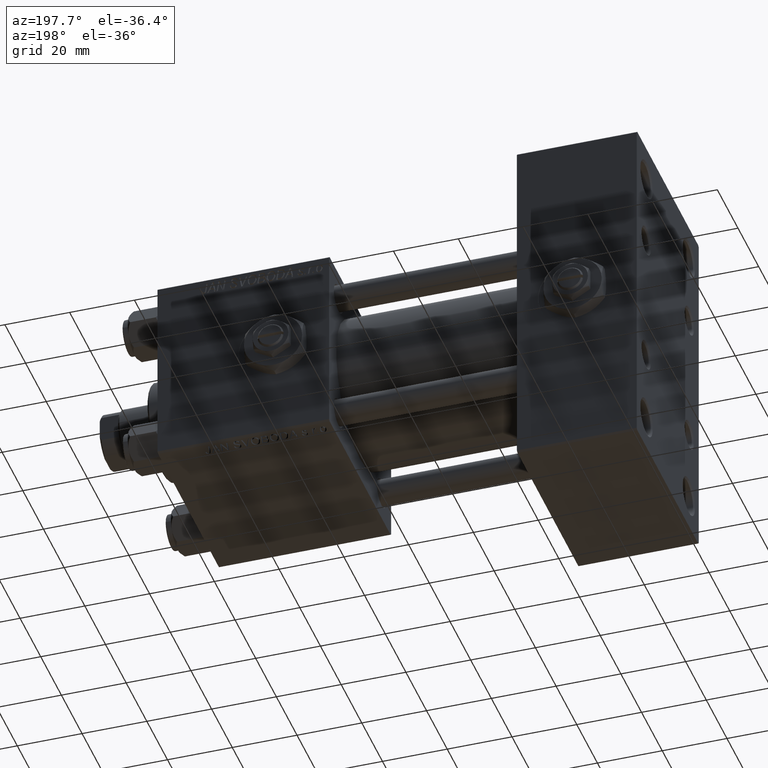
[diagram: clean part render]
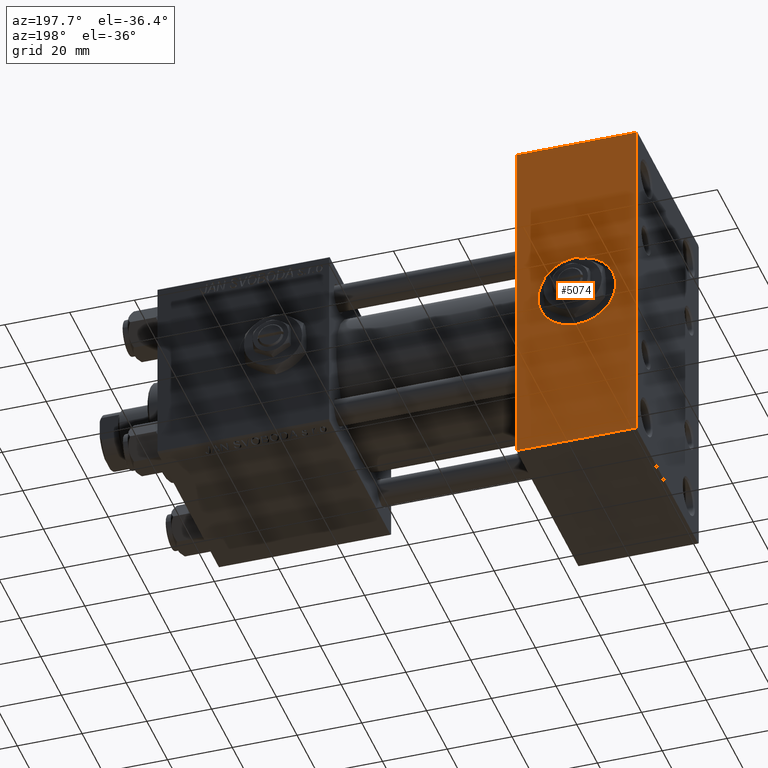
[diagram: same view with one face highlighted and labeled with its STEP entity id]
A machine part, auxiliary view. The second image highlights one B-rep face of the part: STEP entity #5074.
In plain terms, the highlighted planar face has unit normal (0, 1, 0).
Its self-contained STEP definition (entity closure, byte-faithful):
#498 = CARTESIAN_POINT ( 'NONE',  ( 18.50000000000000000, 30.00000000000000355, -12.00000000000000178 ) ) ;
#585 = VECTOR ( 'NONE', #11307, 1000.000000000000000 ) ;
#670 = VECTOR ( 'NONE', #23444, 1000.000000000000000 ) ;
#3161 = LINE ( 'NONE', #10805, #670 ) ;
#4066 = PLANE ( 'NONE',  #40587 ) ;
#4565 = CARTESIAN_POINT ( 'NONE',  ( 0.000000000000000000, 30.00000000000000355, -53.99999999999995737 ) ) ;
#4591 = DIRECTION ( 'NONE',  ( -0.000000000000000000, 1.000000000000000000, 0.000000000000000000 ) ) ;
#5074 = ADVANCED_FACE ( 'NONE', ( #31975, #24356 ), #4066, .T. ) ;
#10488 = VERTEX_POINT ( 'NONE', #32064 ) ;
#10805 = CARTESIAN_POINT ( 'NONE',  ( 0.000000000000000000, 30.00000000000000355, 54.50000000000001421 ) ) ;
#11173 = EDGE_CURVE ( 'NONE', #16066, #10488, #43153, .T. ) ;
#11307 = DIRECTION ( 'NONE',  ( 0.000000000000000000, 0.000000000000000000, -1.000000000000000000 ) ) ;
#11676 = VERTEX_POINT ( 'NONE', #4565 ) ;
#12959 = ORIENTED_EDGE ( 'NONE', *, *, #39206, .F. ) ;
#13815 = VECTOR ( 'NONE', #47857, 1000.000000000000000 ) ;
#15243 = CARTESIAN_POINT ( 'NONE',  ( 18.50000000000000000, 30.00000000000000355, 0.000000000000000000 ) ) ;
#16066 = VERTEX_POINT ( 'NONE', #28572 ) ;
#18246 = AXIS2_PLACEMENT_3D ( 'NONE', #15243, #19195, #27358 ) ;
#19195 = DIRECTION ( 'NONE',  ( 0.000000000000000000, 1.000000000000000000, 0.000000000000000000 ) ) ;
#19709 = CARTESIAN_POINT ( 'NONE',  ( 37.00000000000000000, 30.00000000000000355, 54.50000000000001421 ) ) ;
#19923 = EDGE_CURVE ( 'NONE', #23255, #16066, #43288, .T. ) ;
#20153 = CARTESIAN_POINT ( 'NONE',  ( 18.50000000000000000, 30.00000000000000355, 0.000000000000000000 ) ) ;
#21013 = CARTESIAN_POINT ( 'NONE',  ( 0.000000000000000000, 30.00000000000000355, 54.00000000000001421 ) ) ;
#21776 = ORIENTED_EDGE ( 'NONE', *, *, #41397, .F. ) ;
#23255 = VERTEX_POINT ( 'NONE', #21013 ) ;
#23444 = DIRECTION ( 'NONE',  ( 0.000000000000000000, 0.000000000000000000, -1.000000000000000000 ) ) ;
#24356 = FACE_OUTER_BOUND ( 'NONE', #33166, .T. ) ;
#26336 = VERTEX_POINT ( 'NONE', #30485 ) ;
#27358 = DIRECTION ( 'NONE',  ( 0.000000000000000000, 0.000000000000000000, 1.000000000000000000 ) ) ;
#28291 = DIRECTION ( 'NONE',  ( 0.000000000000000000, 1.000000000000000000, 0.000000000000000000 ) ) ;
#28572 = CARTESIAN_POINT ( 'NONE',  ( 37.00000000000000000, 30.00000000000000355, 54.00000000000001421 ) ) ;
#29630 = VERTEX_POINT ( 'NONE', #498 ) ;
#29877 = EDGE_CURVE ( 'NONE', #10488, #11676, #39421, .T. ) ;
#30057 = AXIS2_PLACEMENT_3D ( 'NONE', #20153, #28291, #44354 ) ;
#30485 = CARTESIAN_POINT ( 'NONE',  ( 18.50000000000000000, 30.00000000000000355, 12.00000000000000178 ) ) ;
#31626 = ORIENTED_EDGE ( 'NONE', *, *, #19923, .T. ) ;
#31975 = FACE_BOUND ( 'NONE', #42572, .T. ) ;
#32064 = CARTESIAN_POINT ( 'NONE',  ( 37.00000000000000000, 30.00000000000000355, -53.99999999999995737 ) ) ;
#32778 = ORIENTED_EDGE ( 'NONE', *, *, #29877, .T. ) ;
#33166 = EDGE_LOOP ( 'NONE', ( #48279, #32778, #43486, #31626 ) ) ;
#33634 = EDGE_CURVE ( 'NONE', #23255, #11676, #3161, .T. ) ;
#35381 = CARTESIAN_POINT ( 'NONE',  ( 37.00000000000000000, 30.00000000000000355, 54.00000000000001421 ) ) ;
#35467 = CARTESIAN_POINT ( 'NONE',  ( 37.00000000000000000, 30.00000000000000355, -53.99999999999995737 ) ) ;
#35664 = DIRECTION ( 'NONE',  ( 0.000000000000000000, -0.000000000000000000, 1.000000000000000000 ) ) ;
#36343 = DIRECTION ( 'NONE',  ( 1.000000000000000000, 0.000000000000000000, 0.000000000000000000 ) ) ;
#39206 = EDGE_CURVE ( 'NONE', #26336, #29630, #46889, .T. ) ;
#39421 = LINE ( 'NONE', #35467, #13815 ) ;
#40587 = AXIS2_PLACEMENT_3D ( 'NONE', #43567, #4591, #35664 ) ;
#40942 = CIRCLE ( 'NONE', #18246, 12.00000000000000178 ) ;
#41397 = EDGE_CURVE ( 'NONE', #29630, #26336, #40942, .T. ) ;
#42572 = EDGE_LOOP ( 'NONE', ( #12959, #21776 ) ) ;
#42786 = VECTOR ( 'NONE', #36343, 1000.000000000000000 ) ;
#43153 = LINE ( 'NONE', #19709, #585 ) ;
#43288 = LINE ( 'NONE', #35381, #42786 ) ;
#43486 = ORIENTED_EDGE ( 'NONE', *, *, #33634, .F. ) ;
#43567 = CARTESIAN_POINT ( 'NONE',  ( 37.00000000000000000, 30.00000000000000355, 54.50000000000001421 ) ) ;
#44354 = DIRECTION ( 'NONE',  ( 0.000000000000000000, 0.000000000000000000, 1.000000000000000000 ) ) ;
#46889 = CIRCLE ( 'NONE', #30057, 12.00000000000000178 ) ;
#47857 = DIRECTION ( 'NONE',  ( -1.000000000000000000, 0.000000000000000000, 0.000000000000000000 ) ) ;
#48279 = ORIENTED_EDGE ( 'NONE', *, *, #11173, .T. ) ;